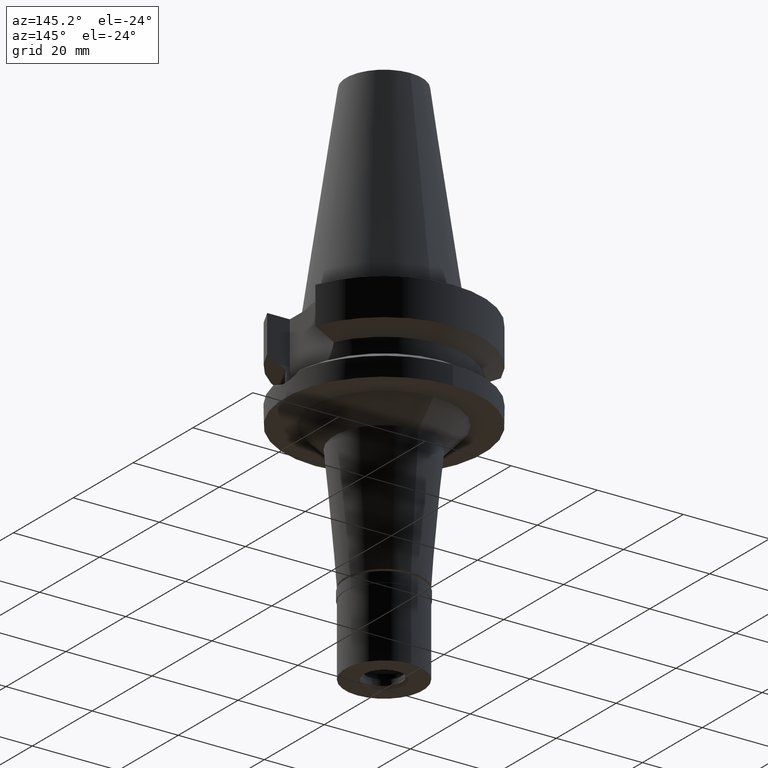
[diagram: clean part render]
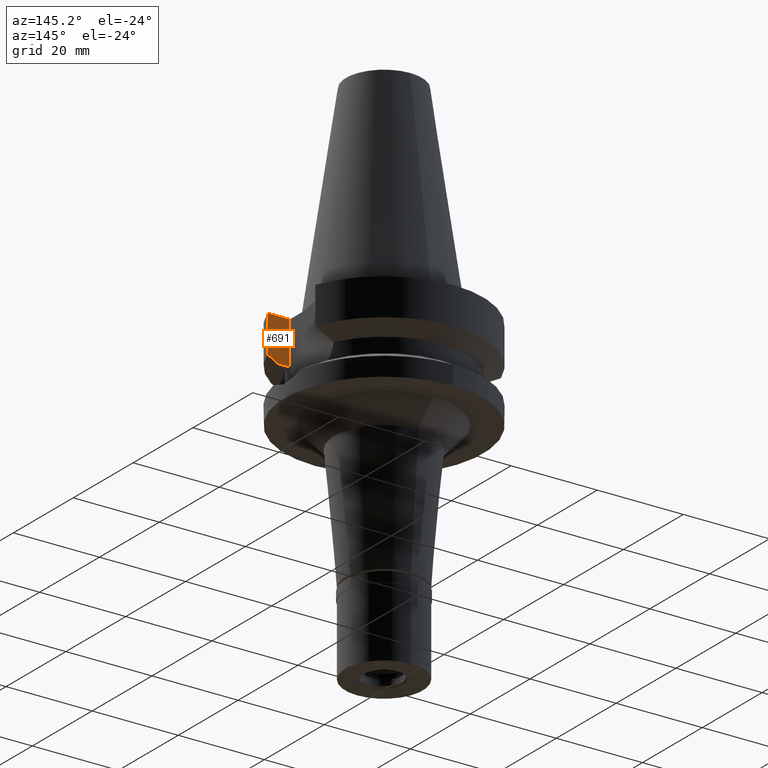
[diagram: same view with one face highlighted and labeled with its STEP entity id]
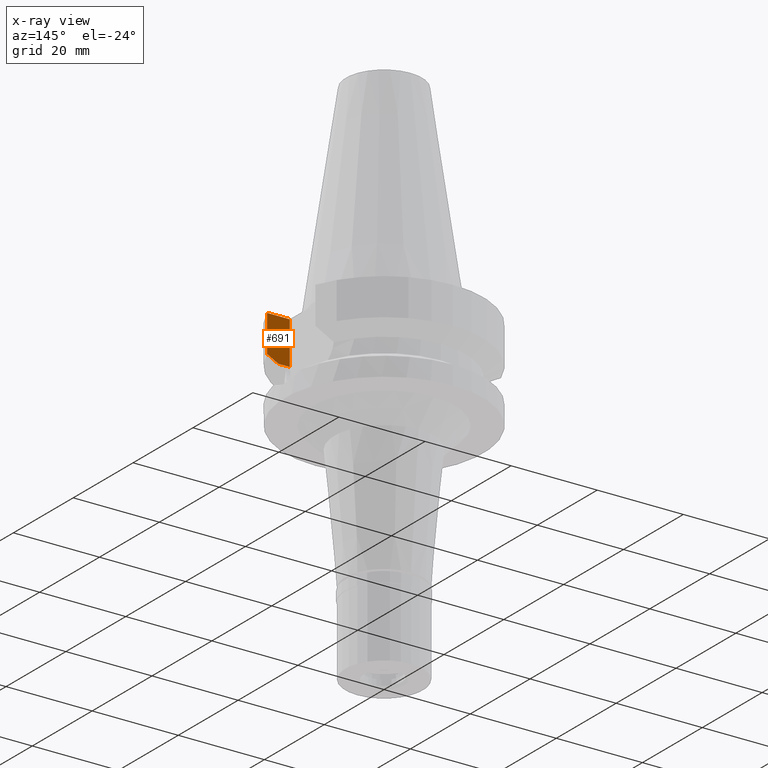
[diagram: x-ray of the same camera — body ghosted, the highlighted face saturated]
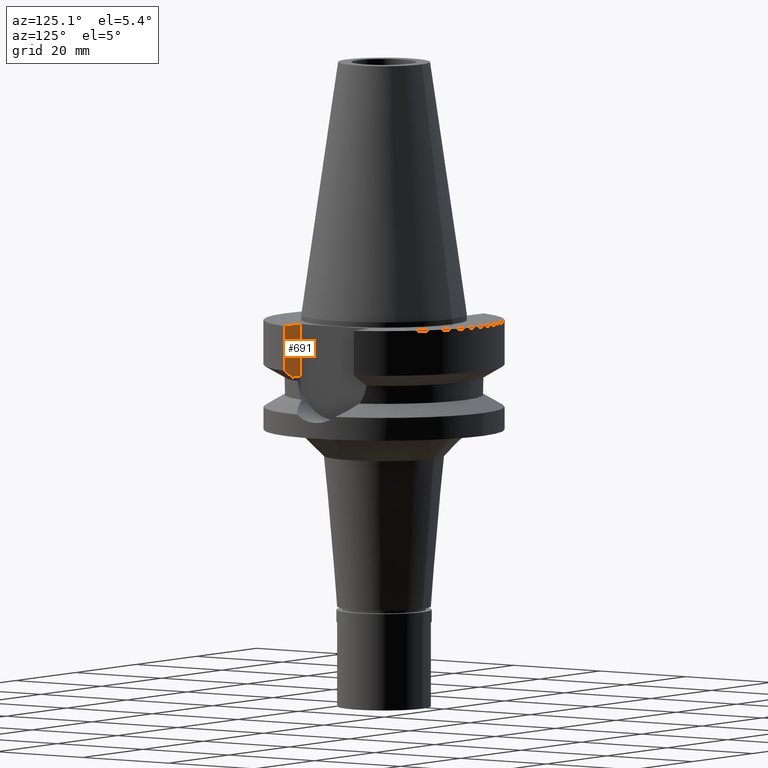
[diagram: same view with one face highlighted and labeled with its STEP entity id]
A machine part, auxiliary view. The second image highlights one B-rep face of the part: STEP entity #691.
The next image is the same camera in x-ray: the body ghosted, the highlighted face saturated — about 0% of this face is hidden behind the body in this view.
A second angle (auxiliary view) of the same face is appended — the face is thin or edge-on in the first view.
In plain terms, the highlighted planar face has unit normal (0, -1, 0).
Its self-contained STEP definition (entity closure, byte-faithful):
#1 = B_SPLINE_CURVE_WITH_KNOTS ( 'NONE', 3,
 ( #418, #1686, #1675, #2577 ),
 .UNSPECIFIED., .F., .F.,
 ( 4, 4 ),
 ( 0.0000000000000000000, 1.000000000000000000 ),
 .UNSPECIFIED. ) ;
#17 = FACE_OUTER_BOUND ( 'NONE', #795, .T. ) ;
#107 = ORIENTED_EDGE ( 'NONE', *, *, #735, .T. ) ;
#143 = VERTEX_POINT ( 'NONE', #384 ) ;
#214 = AXIS2_PLACEMENT_3D ( 'NONE', #2761, #2701, #398 ) ;
#384 = CARTESIAN_POINT ( 'NONE',  ( 16.29999999999999716, -8.050000000000000711, -1.000000000000000000 ) ) ;
#398 = DIRECTION ( 'NONE',  ( 0.0000000000000000000, 0.0000000000000000000, -1.000000000000000000 ) ) ;
#411 = LINE ( 'NONE', #1329, #1860 ) ;
#418 = CARTESIAN_POINT ( 'NONE',  ( 18.96736186693999926, -8.050001277873001015, -10.94999977540000025 ) ) ;
#451 = DIRECTION ( 'NONE',  ( -9.134802528421689256E-08, -2.444862515857914628E-07, -0.9999999999999659162 ) ) ;
#506 = LINE ( 'NONE', #2722, #2090 ) ;
#558 = CARTESIAN_POINT ( 'NONE',  ( 21.54524309446999908, -8.050000000000000711, -1.000000000000000000 ) ) ;
#643 = CARTESIAN_POINT ( 'NONE',  ( 16.29999999999999716, -8.050000000000000711, -10.94999999999999929 ) ) ;
#691 = ADVANCED_FACE ( 'NONE', ( #17 ), #937, .F. ) ;
#735 = EDGE_CURVE ( 'NONE', #2307, #2852, #411, .T. ) ;
#795 = EDGE_LOOP ( 'NONE', ( #107, #2182, #1035, #1715, #2142 ) ) ;
#837 = EDGE_CURVE ( 'NONE', #2852, #143, #506, .T. ) ;
#920 = CARTESIAN_POINT ( 'NONE',  ( 16.29999999999999716, -8.050000000000000711, -1.000000000000000000 ) ) ;
#937 = PLANE ( 'NONE',  #214 ) ;
#1035 = ORIENTED_EDGE ( 'NONE', *, *, #2285, .T. ) ;
#1105 = DIRECTION ( 'NONE',  ( 1.000000000000000000, -9.347030801892000173E-14, 0.0000000000000000000 ) ) ;
#1329 = CARTESIAN_POINT ( 'NONE',  ( 18.96736186693999926, -8.050001277873001015, -10.94999977540000025 ) ) ;
#1369 = CARTESIAN_POINT ( 'NONE',  ( 21.54524309446999908, -8.050000000000999023, -9.567208369710998639 ) ) ;
#1415 = VERTEX_POINT ( 'NONE', #558 ) ;
#1675 = CARTESIAN_POINT ( 'NONE',  ( 20.64101735201231591, -8.050004185258069711, -10.05624233374762966 ) ) ;
#1686 = CARTESIAN_POINT ( 'NONE',  ( 19.78176446227738339, -8.050001299918164932, -10.51717305795229151 ) ) ;
#1715 = ORIENTED_EDGE ( 'NONE', *, *, #2356, .T. ) ;
#1858 = EDGE_CURVE ( 'NONE', #2307, #2895, #1, .T. ) ;
#1860 = VECTOR ( 'NONE', #2238, 1000.000000000000114 ) ;
#1879 = DIRECTION ( 'NONE',  ( 0.0000000000000000000, 0.0000000000000000000, 1.000000000000000000 ) ) ;
#2034 = CARTESIAN_POINT ( 'NONE',  ( 18.96736186693999926, -8.050001277873001015, -10.94999977540000025 ) ) ;
#2090 = VECTOR ( 'NONE', #1879, 1000.000000000000000 ) ;
#2142 = ORIENTED_EDGE ( 'NONE', *, *, #1858, .F. ) ;
#2182 = ORIENTED_EDGE ( 'NONE', *, *, #837, .T. ) ;
#2220 = CARTESIAN_POINT ( 'NONE',  ( 21.54524309446999908, -8.050000000000000711, -1.000000000000000000 ) ) ;
#2238 = DIRECTION ( 'NONE',  ( -0.9999999999998816502, 4.790775581495907912E-07, -8.420253777260848103E-08 ) ) ;
#2244 = VECTOR ( 'NONE', #1105, 1000.000000000000000 ) ;
#2285 = EDGE_CURVE ( 'NONE', #143, #1415, #2903, .T. ) ;
#2307 = VERTEX_POINT ( 'NONE', #2034 ) ;
#2356 = EDGE_CURVE ( 'NONE', #1415, #2895, #2485, .T. ) ;
#2428 = VECTOR ( 'NONE', #451, 1000.000000000000114 ) ;
#2485 = LINE ( 'NONE', #2220, #2428 ) ;
#2577 = CARTESIAN_POINT ( 'NONE',  ( 21.54524309446999908, -8.050000000000999023, -9.567208369710998639 ) ) ;
#2701 = DIRECTION ( 'NONE',  ( 0.0000000000000000000, -1.000000000000000000, 0.0000000000000000000 ) ) ;
#2722 = CARTESIAN_POINT ( 'NONE',  ( 16.29999999999999716, -8.050000000000000711, -10.94999999999999929 ) ) ;
#2761 = CARTESIAN_POINT ( 'NONE',  ( 16.29999999999999716, -8.050000000000000711, -1.000000000000000000 ) ) ;
#2852 = VERTEX_POINT ( 'NONE', #643 ) ;
#2895 = VERTEX_POINT ( 'NONE', #1369 ) ;
#2903 = LINE ( 'NONE', #920, #2244 ) ;